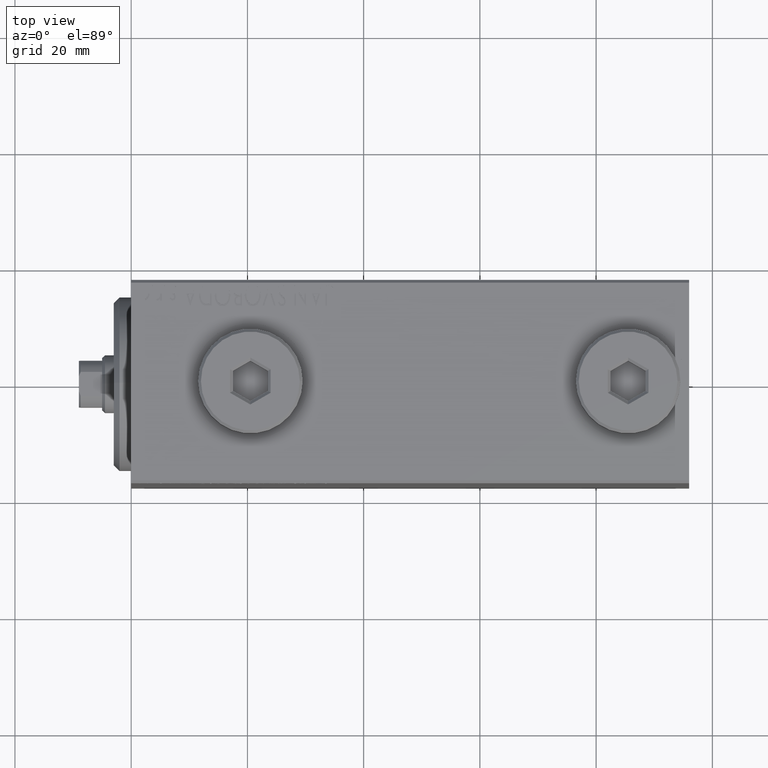
[diagram: clean part render]
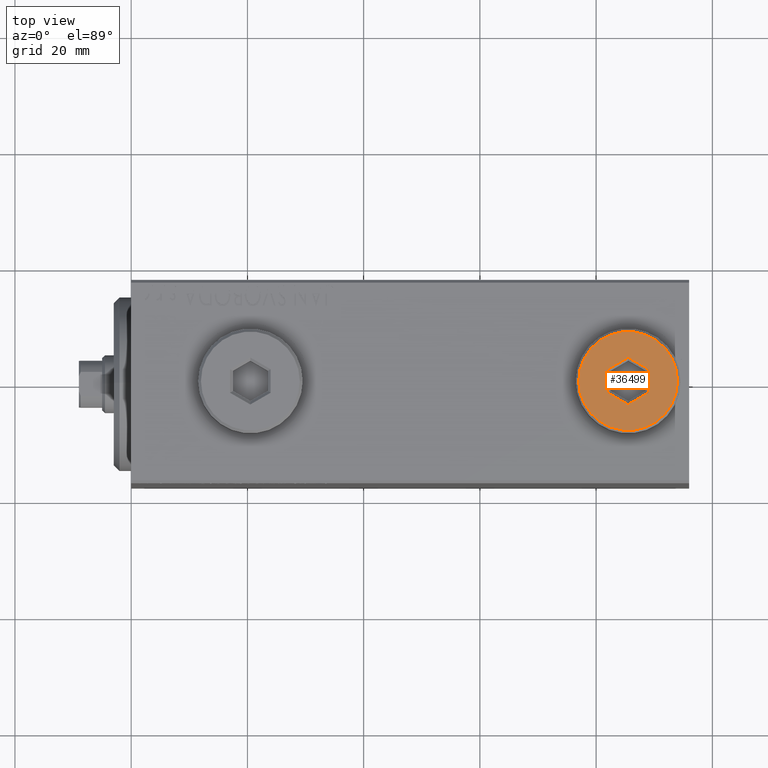
[diagram: same view with one face highlighted and labeled with its STEP entity id]
A machine part, top view. The second image highlights one B-rep face of the part: STEP entity #36499.
In plain terms, the highlighted planar face has unit normal (0, 0, 1).
Its self-contained STEP definition (entity closure, byte-faithful):
#254 = DIRECTION ( 'NONE',  ( 0.000000000000000000, 0.000000000000000000, 1.000000000000000000 ) ) ;
#343 = VECTOR ( 'NONE', #33945, 1000.000000000000000 ) ;
#855 = CARTESIAN_POINT ( 'NONE',  ( -3.500000000000006661, -2.020725942163694278, 5.000000000000000000 ) ) ;
#2058 = CARTESIAN_POINT ( 'NONE',  ( 3.500000000000006661, 2.020725942163694722, 5.000000000000000000 ) ) ;
#2634 = CARTESIAN_POINT ( 'NONE',  ( -0.2500000000000027756, 3.897114317029978459, 5.000000000000000000 ) ) ;
#2909 = CIRCLE ( 'NONE', #40392, 8.500000000000010658 ) ;
#2934 = CARTESIAN_POINT ( 'NONE',  ( -3.500000000000006661, 2.020725942163692945, 5.000000000000000000 ) ) ;
#3568 = VERTEX_POINT ( 'NONE', #16021 ) ;
#5889 = EDGE_LOOP ( 'NONE', ( #39931, #31024 ) ) ;
#8077 = ORIENTED_EDGE ( 'NONE', *, *, #32871, .T. ) ;
#8874 = LINE ( 'NONE', #15538, #15270 ) ;
#8969 = FACE_OUTER_BOUND ( 'NONE', #5889, .T. ) ;
#9074 = LINE ( 'NONE', #41293, #343 ) ;
#9214 = AXIS2_PLACEMENT_3D ( 'NONE', #24176, #38668, #42111 ) ;
#9840 = CARTESIAN_POINT ( 'NONE',  ( 8.500000000000010658, 1.071565949253934716E-15, 5.000000000000000000 ) ) ;
#13038 = EDGE_CURVE ( 'NONE', #45310, #16268, #9074, .T. ) ;
#14385 = VECTOR ( 'NONE', #42342, 1000.000000000000000 ) ;
#14695 = LINE ( 'NONE', #35450, #14385 ) ;
#15270 = VECTOR ( 'NONE', #29625, 1000.000000000000000 ) ;
#15538 = CARTESIAN_POINT ( 'NONE',  ( -3.500000000000006661, 1.732050807568878081, 5.000000000000000000 ) ) ;
#15656 = ORIENTED_EDGE ( 'NONE', *, *, #13038, .T. ) ;
#15919 = EDGE_CURVE ( 'NONE', #23419, #40290, #29081, .T. ) ;
#16021 = CARTESIAN_POINT ( 'NONE',  ( 1.590596867181068292E-15, 4.041451884327386779, 5.000000000000000000 ) ) ;
#16268 = VERTEX_POINT ( 'NONE', #23783 ) ;
#16649 = EDGE_CURVE ( 'NONE', #3568, #20619, #14695, .T. ) ;
#19568 = EDGE_CURVE ( 'NONE', #26962, #3568, #31430, .T. ) ;
#20555 = ORIENTED_EDGE ( 'NONE', *, *, #22027, .T. ) ;
#20619 = VERTEX_POINT ( 'NONE', #2058 ) ;
#22027 = EDGE_CURVE ( 'NONE', #31579, #26962, #8874, .T. ) ;
#23419 = VERTEX_POINT ( 'NONE', #9840 ) ;
#23709 = EDGE_LOOP ( 'NONE', ( #20555, #32098, #27257, #28025, #15656, #8077 ) ) ;
#23765 = DIRECTION ( 'NONE',  ( -0.8660254037844385966, 0.4999999999999999445, 0.000000000000000000 ) ) ;
#23783 = CARTESIAN_POINT ( 'NONE',  ( -1.006139216460143630E-15, -4.041451884327387667, 5.000000000000000000 ) ) ;
#24176 = CARTESIAN_POINT ( 'NONE',  ( 0.000000000000000000, 0.000000000000000000, 5.000000000000000000 ) ) ;
#25609 = CARTESIAN_POINT ( 'NONE',  ( -8.500000000000010658, 0.000000000000000000, 5.000000000000000000 ) ) ;
#26940 = CARTESIAN_POINT ( 'NONE',  ( 0.000000000000000000, 0.000000000000000000, 5.000000000000000000 ) ) ;
#26962 = VERTEX_POINT ( 'NONE', #2934 ) ;
#27257 = ORIENTED_EDGE ( 'NONE', *, *, #16649, .T. ) ;
#27968 = DIRECTION ( 'NONE',  ( 0.000000000000000000, -1.000000000000000000, 0.000000000000000000 ) ) ;
#28025 = ORIENTED_EDGE ( 'NONE', *, *, #37224, .T. ) ;
#28561 = VECTOR ( 'NONE', #23765, 1000.000000000000114 ) ;
#29081 = CIRCLE ( 'NONE', #9214, 8.500000000000010658 ) ;
#29625 = DIRECTION ( 'NONE',  ( 0.000000000000000000, 1.000000000000000000, 0.000000000000000000 ) ) ;
#30857 = DIRECTION ( 'NONE',  ( 0.000000000000000000, 0.000000000000000000, 1.000000000000000000 ) ) ;
#30973 = CARTESIAN_POINT ( 'NONE',  ( 3.500000000000006661, -1.732050807568878303, 5.000000000000000000 ) ) ;
#31024 = ORIENTED_EDGE ( 'NONE', *, *, #15919, .T. ) ;
#31430 = LINE ( 'NONE', #2634, #33640 ) ;
#31579 = VERTEX_POINT ( 'NONE', #855 ) ;
#31589 = CARTESIAN_POINT ( 'NONE',  ( 0.000000000000000000, 0.000000000000000000, 5.000000000000000000 ) ) ;
#32098 = ORIENTED_EDGE ( 'NONE', *, *, #19568, .T. ) ;
#32871 = EDGE_CURVE ( 'NONE', #16268, #31579, #33894, .T. ) ;
#33386 = DIRECTION ( 'NONE',  ( 1.000000000000000000, 0.000000000000000000, -0.000000000000000000 ) ) ;
#33640 = VECTOR ( 'NONE', #38550, 1000.000000000000000 ) ;
#33839 = VECTOR ( 'NONE', #27968, 1000.000000000000000 ) ;
#33894 = LINE ( 'NONE', #44930, #28561 ) ;
#33945 = DIRECTION ( 'NONE',  ( -0.8660254037844387076, -0.4999999999999998890, 0.000000000000000000 ) ) ;
#35450 = CARTESIAN_POINT ( 'NONE',  ( 3.250000000000003109, 2.165063509461103042, 5.000000000000000000 ) ) ;
#35532 = CARTESIAN_POINT ( 'NONE',  ( 3.500000000000006661, -2.020725942163693833, 5.000000000000000000 ) ) ;
#36335 = EDGE_CURVE ( 'NONE', #40290, #23419, #2909, .T. ) ;
#36499 = ADVANCED_FACE ( 'NONE', ( #40950, #8969 ), #37513, .T. ) ;
#37224 = EDGE_CURVE ( 'NONE', #20619, #45310, #41982, .T. ) ;
#37513 = PLANE ( 'NONE',  #42664 ) ;
#38550 = DIRECTION ( 'NONE',  ( 0.8660254037844387076, 0.4999999999999998335, 0.000000000000000000 ) ) ;
#38668 = DIRECTION ( 'NONE',  ( 0.000000000000000000, 0.000000000000000000, 1.000000000000000000 ) ) ;
#39931 = ORIENTED_EDGE ( 'NONE', *, *, #36335, .T. ) ;
#40290 = VERTEX_POINT ( 'NONE', #25609 ) ;
#40392 = AXIS2_PLACEMENT_3D ( 'NONE', #31589, #254, #42599 ) ;
#40950 = FACE_BOUND ( 'NONE', #23709, .T. ) ;
#41293 = CARTESIAN_POINT ( 'NONE',  ( 0.2500000000000027756, -3.897114317029979347, 5.000000000000000000 ) ) ;
#41982 = LINE ( 'NONE', #30973, #33839 ) ;
#42111 = DIRECTION ( 'NONE',  ( 1.000000000000000000, 0.000000000000000000, 0.000000000000000000 ) ) ;
#42342 = DIRECTION ( 'NONE',  ( 0.8660254037844387076, -0.4999999999999998890, 0.000000000000000000 ) ) ;
#42599 = DIRECTION ( 'NONE',  ( 1.000000000000000000, 0.000000000000000000, 0.000000000000000000 ) ) ;
#42664 = AXIS2_PLACEMENT_3D ( 'NONE', #26940, #30857, #33386 ) ;
#44930 = CARTESIAN_POINT ( 'NONE',  ( -3.250000000000003109, -2.165063509461102598, 5.000000000000000000 ) ) ;
#45310 = VERTEX_POINT ( 'NONE', #35532 ) ;